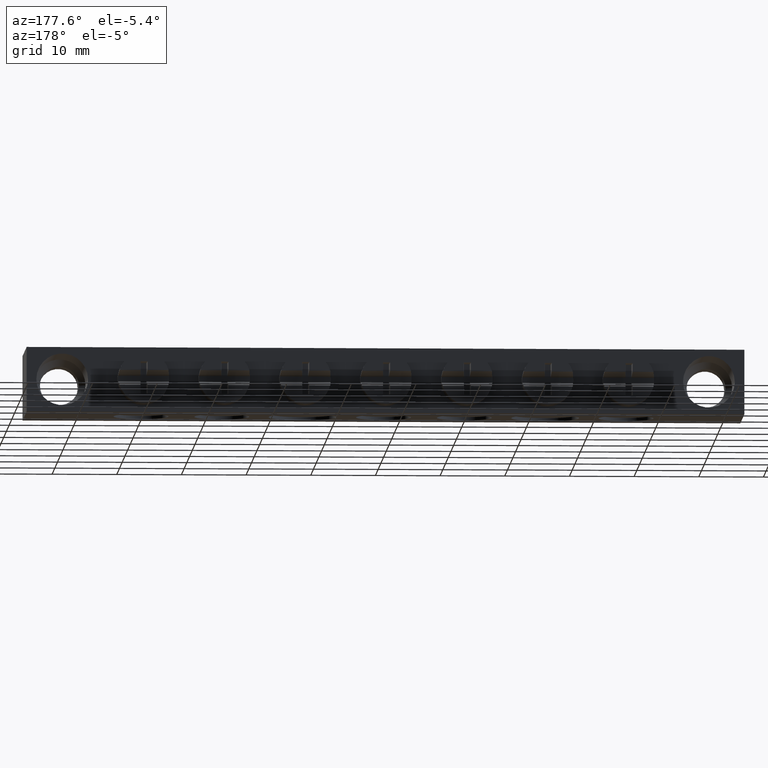
[diagram: clean part render]
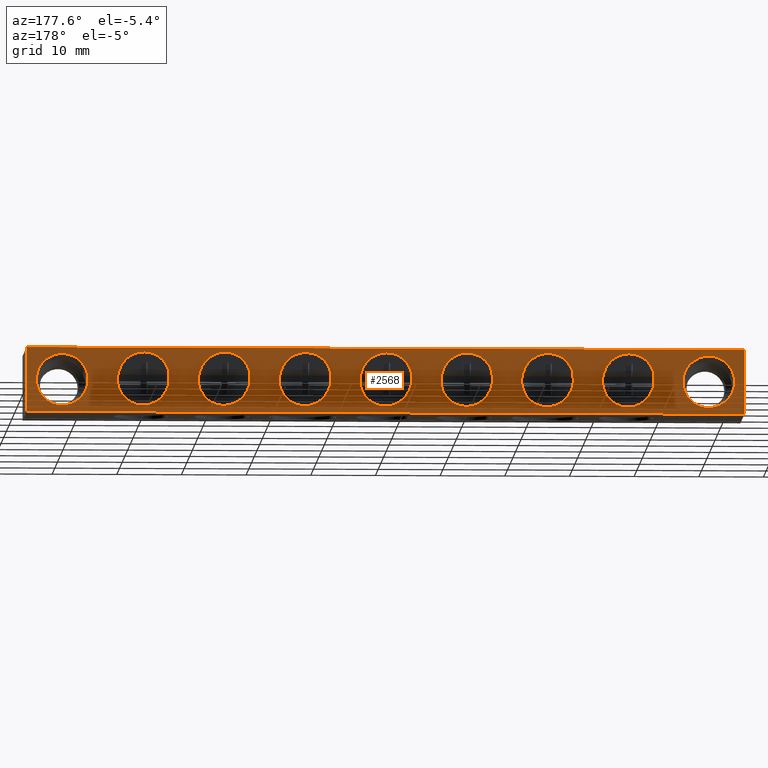
[diagram: same view with one face highlighted and labeled with its STEP entity id]
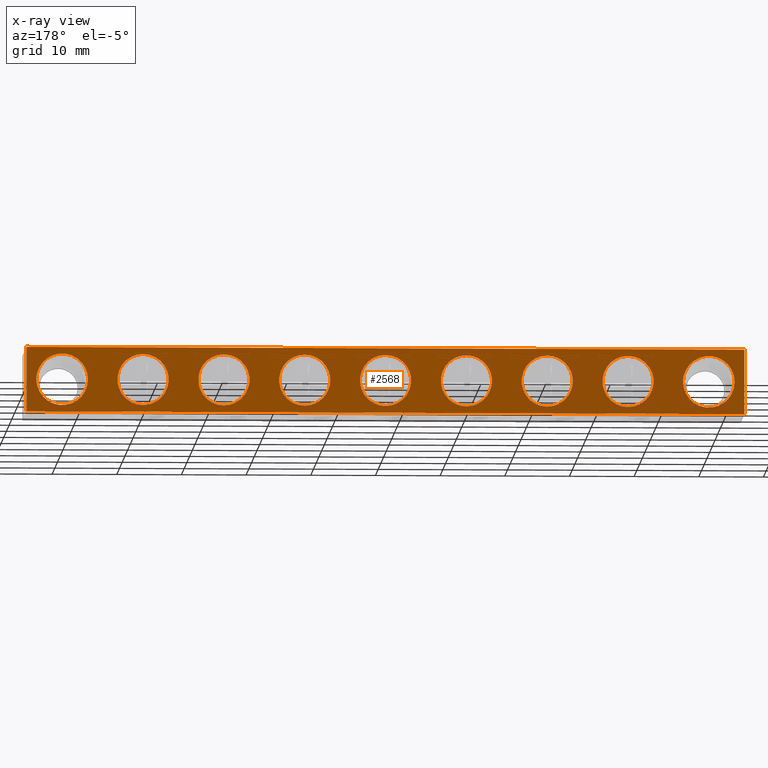
[diagram: x-ray of the same camera — body ghosted, the highlighted face saturated]
A machine part, auxiliary view. The second image highlights one B-rep face of the part: STEP entity #2568.
The next image is the same camera in x-ray: the body ghosted, the highlighted face saturated — about 0% of this face is hidden behind the body in this view.
In plain terms, the highlighted planar face has unit normal (0, -1, 0).
Its self-contained STEP definition (entity closure, byte-faithful):
#11 = EDGE_CURVE ( 'NONE', #3848, #3944, #870, .T. ) ;
#28 = EDGE_CURVE ( 'NONE', #3853, #3908, #873, .T. ) ;
#32 = EDGE_CURVE ( 'NONE', #445, #473, #885, .T. ) ;
#372 = EDGE_LOOP ( 'NONE', ( #523, #535 ) ) ;
#379 = EDGE_LOOP ( 'NONE', ( #537, #531 ) ) ;
#388 = EDGE_LOOP ( 'NONE', ( #560, #548 ) ) ;
#408 = EDGE_LOOP ( 'NONE', ( #553, #568 ) ) ;
#412 = EDGE_LOOP ( 'NONE', ( #532, #541 ) ) ;
#413 = EDGE_LOOP ( 'NONE', ( #576, #543 ) ) ;
#427 = EDGE_LOOP ( 'NONE', ( #601, #593 ) ) ;
#428 = EDGE_LOOP ( 'NONE', ( #596, #552 ) ) ;
#430 = EDGE_LOOP ( 'NONE', ( #599, #592, #479, #485 ) ) ;
#432 = VERTEX_POINT ( 'NONE', #3379 ) ;
#437 = EDGE_LOOP ( 'NONE', ( #515, #558 ) ) ;
#442 = VERTEX_POINT ( 'NONE', #3393 ) ;
#445 = VERTEX_POINT ( 'NONE', #3394 ) ;
#468 = VERTEX_POINT ( 'NONE', #3378 ) ;
#473 = VERTEX_POINT ( 'NONE', #3373 ) ;
#474 = VERTEX_POINT ( 'NONE', #3407 ) ;
#479 = ORIENTED_EDGE ( 'NONE', *, *, #2667, .F. ) ;
#485 = ORIENTED_EDGE ( 'NONE', *, *, #2669, .F. ) ;
#515 = ORIENTED_EDGE ( 'NONE', *, *, #4964, .F. ) ;
#523 = ORIENTED_EDGE ( 'NONE', *, *, #2787, .F. ) ;
#531 = ORIENTED_EDGE ( 'NONE', *, *, #2647, .F. ) ;
#532 = ORIENTED_EDGE ( 'NONE', *, *, #2549, .F. ) ;
#535 = ORIENTED_EDGE ( 'NONE', *, *, #2662, .F. ) ;
#537 = ORIENTED_EDGE ( 'NONE', *, *, #2970, .F. ) ;
#541 = ORIENTED_EDGE ( 'NONE', *, *, #2660, .F. ) ;
#543 = ORIENTED_EDGE ( 'NONE', *, *, #2643, .F. ) ;
#548 = ORIENTED_EDGE ( 'NONE', *, *, #2637, .F. ) ;
#552 = ORIENTED_EDGE ( 'NONE', *, *, #2642, .F. ) ;
#553 = ORIENTED_EDGE ( 'NONE', *, *, #11, .F. ) ;
#558 = ORIENTED_EDGE ( 'NONE', *, *, #2285, .F. ) ;
#560 = ORIENTED_EDGE ( 'NONE', *, *, #28, .F. ) ;
#568 = ORIENTED_EDGE ( 'NONE', *, *, #2671, .F. ) ;
#576 = ORIENTED_EDGE ( 'NONE', *, *, #2593, .F. ) ;
#592 = ORIENTED_EDGE ( 'NONE', *, *, #2644, .T. ) ;
#593 = ORIENTED_EDGE ( 'NONE', *, *, #2817, .F. ) ;
#596 = ORIENTED_EDGE ( 'NONE', *, *, #32, .F. ) ;
#599 = ORIENTED_EDGE ( 'NONE', *, *, #2664, .T. ) ;
#601 = ORIENTED_EDGE ( 'NONE', *, *, #2758, .F. ) ;
#670 = VERTEX_POINT ( 'NONE', #3422 ) ;
#692 = VERTEX_POINT ( 'NONE', #3530 ) ;
#856 = CIRCLE ( 'NONE', #879, 4.000000000000031100 ) ;
#866 = AXIS2_PLACEMENT_3D ( 'NONE', #3556, #3566, #3573 ) ;
#870 = CIRCLE ( 'NONE', #897, 3.960000000000000000 ) ;
#873 = CIRCLE ( 'NONE', #874, 3.960000000000000000 ) ;
#874 = AXIS2_PLACEMENT_3D ( 'NONE', #3357, #3355, #3360 ) ;
#877 = AXIS2_PLACEMENT_3D ( 'NONE', #3369, #3348, #3349 ) ;
#878 = CIRCLE ( 'NONE', #866, 3.960000000000000000 ) ;
#879 = AXIS2_PLACEMENT_3D ( 'NONE', #3579, #3543, #3581 ) ;
#885 = CIRCLE ( 'NONE', #877, 3.960000000000000000 ) ;
#897 = AXIS2_PLACEMENT_3D ( 'NONE', #3295, #3286, #3297 ) ;
#904 = AXIS2_PLACEMENT_3D ( 'NONE', #3699, #3782, #1722 ) ;
#929 = CIRCLE ( 'NONE', #904, 3.960000000000000000 ) ;
#951 = AXIS2_PLACEMENT_3D ( 'NONE', #3684, #3663, #3667 ) ;
#965 = CIRCLE ( 'NONE', #1010, 3.960000000000000000 ) ;
#967 = AXIS2_PLACEMENT_3D ( 'NONE', #1924, #1929, #1966 ) ;
#969 = CIRCLE ( 'NONE', #972, 3.960000000000000000 ) ;
#972 = AXIS2_PLACEMENT_3D ( 'NONE', #1903, #1926, #1917 ) ;
#990 = CIRCLE ( 'NONE', #967, 3.960000000000000000 ) ;
#991 = VECTOR ( 'NONE', #1951, 1000.000000000000000 ) ;
#992 = AXIS2_PLACEMENT_3D ( 'NONE', #1981, #1949, #1985 ) ;
#1010 = AXIS2_PLACEMENT_3D ( 'NONE', #1952, #1988, #1987 ) ;
#1017 = CIRCLE ( 'NONE', #992, 3.960000000000000000 ) ;
#1021 = AXIS2_PLACEMENT_3D ( 'NONE', #2079, #2078, #2071 ) ;
#1025 = VECTOR ( 'NONE', #1994, 1000.000000000000000 ) ;
#1031 = AXIS2_PLACEMENT_3D ( 'NONE', #2037, #2034, #2032 ) ;
#1032 = VECTOR ( 'NONE', #2048, 1000.000000000000000 ) ;
#1036 = CIRCLE ( 'NONE', #1048, 3.960000000000000000 ) ;
#1039 = CIRCLE ( 'NONE', #1031, 3.960000000000000000 ) ;
#1048 = AXIS2_PLACEMENT_3D ( 'NONE', #2009, #2014, #2019 ) ;
#1051 = VECTOR ( 'NONE', #2080, 1000.000000000000000 ) ;
#1056 = CIRCLE ( 'NONE', #1021, 3.960000000000000000 ) ;
#1171 = CIRCLE ( 'NONE', #1193, 3.960000000000000000 ) ;
#1190 = CIRCLE ( 'NONE', #1199, 4.000000000000034600 ) ;
#1193 = AXIS2_PLACEMENT_3D ( 'NONE', #2989, #2975, #2990 ) ;
#1199 = AXIS2_PLACEMENT_3D ( 'NONE', #1602, #1598, #1608 ) ;
#1211 = CIRCLE ( 'NONE', #1228, 4.000000000000034600 ) ;
#1228 = AXIS2_PLACEMENT_3D ( 'NONE', #3109, #3086, #3117 ) ;
#1279 = CIRCLE ( 'NONE', #1281, 3.960000000000000000 ) ;
#1281 = AXIS2_PLACEMENT_3D ( 'NONE', #2366, #2361, #2336 ) ;
#1389 = CIRCLE ( 'NONE', #1398, 4.000000000000031100 ) ;
#1398 = AXIS2_PLACEMENT_3D ( 'NONE', #4573, #4608, #4578 ) ;
#1598 = DIRECTION ( 'NONE',  ( -1.156482317317877900E-016, 1.000000000000000000, 0.0000000000000000000 ) ) ;
#1602 = CARTESIAN_POINT ( 'NONE',  ( 12.00000000000000000, 15.00000000000000400, -5.000000000000000000 ) ) ;
#1608 = DIRECTION ( 'NONE',  ( -1.000000000000000000, 0.0000000000000000000, 0.0000000000000000000 ) ) ;
#1722 = DIRECTION ( 'NONE',  ( 0.0000000000000000000, 0.0000000000000000000, 1.000000000000000000 ) ) ;
#1903 = CARTESIAN_POINT ( 'NONE',  ( 49.50000000000000000, 15.00000000000000000, -4.999999999999879200 ) ) ;
#1915 = LINE ( 'NONE', #1923, #991 ) ;
#1917 = DIRECTION ( 'NONE',  ( 0.0000000000000000000, 0.0000000000000000000, 1.000000000000000000 ) ) ;
#1923 = CARTESIAN_POINT ( 'NONE',  ( 117.5000000000000100, 15.00000000000000000, 0.0000000000000000000 ) ) ;
#1924 = CARTESIAN_POINT ( 'NONE',  ( 74.50000000000001400, 15.00000000000000000, -4.999999999999879200 ) ) ;
#1926 = DIRECTION ( 'NONE',  ( 0.0000000000000000000, 1.000000000000000000, 0.0000000000000000000 ) ) ;
#1929 = DIRECTION ( 'NONE',  ( 0.0000000000000000000, 1.000000000000000000, 0.0000000000000000000 ) ) ;
#1949 = DIRECTION ( 'NONE',  ( 0.0000000000000000000, 1.000000000000000000, 0.0000000000000000000 ) ) ;
#1951 = DIRECTION ( 'NONE',  ( -0.0000000000000000000, -0.0000000000000000000, -1.000000000000000000 ) ) ;
#1952 = CARTESIAN_POINT ( 'NONE',  ( 24.49999999999999300, 15.00000000000000000, -4.999999999999879200 ) ) ;
#1966 = DIRECTION ( 'NONE',  ( 0.0000000000000000000, 0.0000000000000000000, 1.000000000000000000 ) ) ;
#1981 = CARTESIAN_POINT ( 'NONE',  ( 87.00000000000002800, 15.00000000000000000, -4.999999999999879200 ) ) ;
#1985 = DIRECTION ( 'NONE',  ( 0.0000000000000000000, 0.0000000000000000000, 1.000000000000000000 ) ) ;
#1987 = DIRECTION ( 'NONE',  ( 0.0000000000000000000, 0.0000000000000000000, 1.000000000000000000 ) ) ;
#1988 = DIRECTION ( 'NONE',  ( 0.0000000000000000000, 1.000000000000000000, 0.0000000000000000000 ) ) ;
#1994 = DIRECTION ( 'NONE',  ( 1.000000000000000000, -0.0000000000000000000, 0.0000000000000000000 ) ) ;
#2009 = CARTESIAN_POINT ( 'NONE',  ( 62.00000000000000000, 15.00000000000000000, -4.999999999999879200 ) ) ;
#2014 = DIRECTION ( 'NONE',  ( 0.0000000000000000000, 1.000000000000000000, 0.0000000000000000000 ) ) ;
#2016 = LINE ( 'NONE', #2020, #1025 ) ;
#2019 = DIRECTION ( 'NONE',  ( 0.0000000000000000000, 0.0000000000000000000, 1.000000000000000000 ) ) ;
#2020 = CARTESIAN_POINT ( 'NONE',  ( 0.0000000000000000000, 15.00000000000000000, 0.0000000000000000000 ) ) ;
#2032 = DIRECTION ( 'NONE',  ( 0.0000000000000000000, 0.0000000000000000000, 1.000000000000000000 ) ) ;
#2034 = DIRECTION ( 'NONE',  ( 0.0000000000000000000, 1.000000000000000000, 0.0000000000000000000 ) ) ;
#2036 = LINE ( 'NONE', #2063, #1051 ) ;
#2037 = CARTESIAN_POINT ( 'NONE',  ( 99.50000000000000000, 15.00000000000000000, -4.999999999999879200 ) ) ;
#2045 = CARTESIAN_POINT ( 'NONE',  ( 0.0000000000000000000, 15.00000000000000000, -10.00000000000000000 ) ) ;
#2048 = DIRECTION ( 'NONE',  ( 1.000000000000000000, 0.0000000000000000000, 0.0000000000000000000 ) ) ;
#2051 = LINE ( 'NONE', #2045, #1032 ) ;
#2063 = CARTESIAN_POINT ( 'NONE',  ( 6.500000000000000900, 15.00000000000000000, -10.00000000000000000 ) ) ;
#2071 = DIRECTION ( 'NONE',  ( 0.0000000000000000000, 0.0000000000000000000, 1.000000000000000000 ) ) ;
#2078 = DIRECTION ( 'NONE',  ( 0.0000000000000000000, 1.000000000000000000, 0.0000000000000000000 ) ) ;
#2079 = CARTESIAN_POINT ( 'NONE',  ( 37.00000000000000700, 15.00000000000000000, -4.999999999999879200 ) ) ;
#2080 = DIRECTION ( 'NONE',  ( 0.0000000000000000000, -0.0000000000000000000, -1.000000000000000000 ) ) ;
#2285 = EDGE_CURVE ( 'NONE', #3265, #3278, #856, .T. ) ;
#2334 = CARTESIAN_POINT ( 'NONE',  ( 107.9999999999999700, 15.00000000000000400, -5.000000000000000000 ) ) ;
#2336 = DIRECTION ( 'NONE',  ( 0.0000000000000000000, 0.0000000000000000000, 1.000000000000000000 ) ) ;
#2348 = CARTESIAN_POINT ( 'NONE',  ( 16.00000000000003600, 15.00000000000000400, -4.999999999999999100 ) ) ;
#2357 = CARTESIAN_POINT ( 'NONE',  ( 7.999999999999965400, 15.00000000000000400, -5.000000000000000000 ) ) ;
#2361 = DIRECTION ( 'NONE',  ( 0.0000000000000000000, 1.000000000000000000, 0.0000000000000000000 ) ) ;
#2366 = CARTESIAN_POINT ( 'NONE',  ( 24.49999999999999300, 15.00000000000000000, -4.999999999999879200 ) ) ;
#2383 = CARTESIAN_POINT ( 'NONE',  ( 116.0000000000000300, 15.00000000000000400, -4.999999999999999100 ) ) ;
#2392 = CARTESIAN_POINT ( 'NONE',  ( 49.50000000000000000, 15.00000000000000000, -1.039999999999879500 ) ) ;
#2395 = CARTESIAN_POINT ( 'NONE',  ( 37.00000000000000700, 15.00000000000000000, -1.039999999999879500 ) ) ;
#2411 = CARTESIAN_POINT ( 'NONE',  ( 6.500000000000000900, 15.00000000000000000, 0.0000000000000000000 ) ) ;
#2418 = CARTESIAN_POINT ( 'NONE',  ( 6.500000000000000900, 15.00000000000000000, -10.00000000000000000 ) ) ;
#2423 = CARTESIAN_POINT ( 'NONE',  ( 117.5000000000000100, 15.00000000000000000, 0.0000000000000000000 ) ) ;
#2443 = CARTESIAN_POINT ( 'NONE',  ( 117.5000000000000100, 15.00000000000000000, -10.00000000000000000 ) ) ;
#2450 = CARTESIAN_POINT ( 'NONE',  ( 37.00000000000000700, 15.00000000000000000, -8.959999999999880100 ) ) ;
#2468 = CARTESIAN_POINT ( 'NONE',  ( 62.00000000000000000, 15.00000000000000000, -1.039999999999879500 ) ) ;
#2469 = CARTESIAN_POINT ( 'NONE',  ( 49.50000000000000000, 15.00000000000000000, -8.959999999999880100 ) ) ;
#2476 = CARTESIAN_POINT ( 'NONE',  ( 62.00000000000000000, 15.00000000000000000, -8.959999999999880100 ) ) ;
#2549 = EDGE_CURVE ( 'NONE', #442, #432, #878, .T. ) ;
#2568 = ADVANCED_FACE ( 'NONE', ( #3661, #3662, #3683, #3658, #3687, #3691, #3665, #3690, #3670, #3649 ), #3650, .F. ) ;
#2593 = EDGE_CURVE ( 'NONE', #468, #474, #929, .T. ) ;
#2637 = EDGE_CURVE ( 'NONE', #3908, #3853, #969, .T. ) ;
#2642 = EDGE_CURVE ( 'NONE', #473, #445, #990, .T. ) ;
#2643 = EDGE_CURVE ( 'NONE', #474, #468, #1017, .T. ) ;
#2644 = EDGE_CURVE ( 'NONE', #3884, #3873, #1915, .T. ) ;
#2647 = EDGE_CURVE ( 'NONE', #692, #670, #965, .T. ) ;
#2660 = EDGE_CURVE ( 'NONE', #432, #442, #1039, .T. ) ;
#2662 = EDGE_CURVE ( 'NONE', #3905, #3899, #1036, .T. ) ;
#2664 = EDGE_CURVE ( 'NONE', #3875, #3884, #2016, .T. ) ;
#2667 = EDGE_CURVE ( 'NONE', #3874, #3873, #2051, .T. ) ;
#2669 = EDGE_CURVE ( 'NONE', #3875, #3874, #2036, .T. ) ;
#2671 = EDGE_CURVE ( 'NONE', #3944, #3848, #1056, .T. ) ;
#2758 = EDGE_CURVE ( 'NONE', #3266, #3247, #1190, .T. ) ;
#2787 = EDGE_CURVE ( 'NONE', #3899, #3905, #1171, .T. ) ;
#2817 = EDGE_CURVE ( 'NONE', #3247, #3266, #1211, .T. ) ;
#2970 = EDGE_CURVE ( 'NONE', #670, #692, #1279, .T. ) ;
#2975 = DIRECTION ( 'NONE',  ( 0.0000000000000000000, 1.000000000000000000, 0.0000000000000000000 ) ) ;
#2989 = CARTESIAN_POINT ( 'NONE',  ( 62.00000000000000000, 15.00000000000000000, -4.999999999999879200 ) ) ;
#2990 = DIRECTION ( 'NONE',  ( 0.0000000000000000000, 0.0000000000000000000, 1.000000000000000000 ) ) ;
#3086 = DIRECTION ( 'NONE',  ( -1.156482317317877900E-016, 1.000000000000000000, 0.0000000000000000000 ) ) ;
#3109 = CARTESIAN_POINT ( 'NONE',  ( 12.00000000000000000, 15.00000000000000400, -5.000000000000000000 ) ) ;
#3117 = DIRECTION ( 'NONE',  ( -1.000000000000000000, 0.0000000000000000000, 0.0000000000000000000 ) ) ;
#3247 = VERTEX_POINT ( 'NONE', #2348 ) ;
#3265 = VERTEX_POINT ( 'NONE', #2383 ) ;
#3266 = VERTEX_POINT ( 'NONE', #2357 ) ;
#3278 = VERTEX_POINT ( 'NONE', #2334 ) ;
#3286 = DIRECTION ( 'NONE',  ( 0.0000000000000000000, 1.000000000000000000, 0.0000000000000000000 ) ) ;
#3295 = CARTESIAN_POINT ( 'NONE',  ( 37.00000000000000700, 15.00000000000000000, -4.999999999999879200 ) ) ;
#3297 = DIRECTION ( 'NONE',  ( 0.0000000000000000000, 0.0000000000000000000, 1.000000000000000000 ) ) ;
#3348 = DIRECTION ( 'NONE',  ( 0.0000000000000000000, 1.000000000000000000, 0.0000000000000000000 ) ) ;
#3349 = DIRECTION ( 'NONE',  ( 0.0000000000000000000, 0.0000000000000000000, 1.000000000000000000 ) ) ;
#3355 = DIRECTION ( 'NONE',  ( 0.0000000000000000000, 1.000000000000000000, 0.0000000000000000000 ) ) ;
#3357 = CARTESIAN_POINT ( 'NONE',  ( 49.50000000000000000, 15.00000000000000000, -4.999999999999879200 ) ) ;
#3360 = DIRECTION ( 'NONE',  ( 0.0000000000000000000, 0.0000000000000000000, 1.000000000000000000 ) ) ;
#3369 = CARTESIAN_POINT ( 'NONE',  ( 74.50000000000001400, 15.00000000000000000, -4.999999999999879200 ) ) ;
#3373 = CARTESIAN_POINT ( 'NONE',  ( 74.50000000000001400, 15.00000000000000000, -8.959999999999880100 ) ) ;
#3378 = CARTESIAN_POINT ( 'NONE',  ( 87.00000000000002800, 15.00000000000000000, -1.039999999999879500 ) ) ;
#3379 = CARTESIAN_POINT ( 'NONE',  ( 99.50000000000000000, 15.00000000000000000, -8.959999999999880100 ) ) ;
#3393 = CARTESIAN_POINT ( 'NONE',  ( 99.50000000000000000, 15.00000000000000000, -1.039999999999879500 ) ) ;
#3394 = CARTESIAN_POINT ( 'NONE',  ( 74.50000000000001400, 15.00000000000000000, -1.039999999999879500 ) ) ;
#3407 = CARTESIAN_POINT ( 'NONE',  ( 87.00000000000002800, 15.00000000000000000, -8.959999999999880100 ) ) ;
#3422 = CARTESIAN_POINT ( 'NONE',  ( 24.49999999999999300, 15.00000000000000000, -1.039999999999879500 ) ) ;
#3530 = CARTESIAN_POINT ( 'NONE',  ( 24.49999999999999300, 15.00000000000000000, -8.959999999999880100 ) ) ;
#3543 = DIRECTION ( 'NONE',  ( 1.156482317317877900E-016, 1.000000000000000000, 0.0000000000000000000 ) ) ;
#3556 = CARTESIAN_POINT ( 'NONE',  ( 99.50000000000000000, 15.00000000000000000, -4.999999999999879200 ) ) ;
#3566 = DIRECTION ( 'NONE',  ( 0.0000000000000000000, 1.000000000000000000, 0.0000000000000000000 ) ) ;
#3573 = DIRECTION ( 'NONE',  ( 0.0000000000000000000, 0.0000000000000000000, 1.000000000000000000 ) ) ;
#3579 = CARTESIAN_POINT ( 'NONE',  ( 112.0000000000000000, 15.00000000000000400, -5.000000000000000000 ) ) ;
#3581 = DIRECTION ( 'NONE',  ( -1.000000000000000000, 0.0000000000000000000, 0.0000000000000000000 ) ) ;
#3649 = FACE_BOUND ( 'NONE', #427, .T. ) ;
#3650 = PLANE ( 'NONE',  #951 ) ;
#3658 = FACE_BOUND ( 'NONE', #372, .T. ) ;
#3661 = FACE_BOUND ( 'NONE', #379, .T. ) ;
#3662 = FACE_BOUND ( 'NONE', #408, .T. ) ;
#3663 = DIRECTION ( 'NONE',  ( 0.0000000000000000000, -1.000000000000000000, 0.0000000000000000000 ) ) ;
#3665 = FACE_BOUND ( 'NONE', #412, .T. ) ;
#3667 = DIRECTION ( 'NONE',  ( 0.0000000000000000000, -0.0000000000000000000, -1.000000000000000000 ) ) ;
#3670 = FACE_OUTER_BOUND ( 'NONE', #430, .T. ) ;
#3683 = FACE_BOUND ( 'NONE', #388, .T. ) ;
#3684 = CARTESIAN_POINT ( 'NONE',  ( 0.0000000000000000000, 15.00000000000000000, -10.00000000000000000 ) ) ;
#3687 = FACE_BOUND ( 'NONE', #428, .T. ) ;
#3690 = FACE_BOUND ( 'NONE', #437, .T. ) ;
#3691 = FACE_BOUND ( 'NONE', #413, .T. ) ;
#3699 = CARTESIAN_POINT ( 'NONE',  ( 87.00000000000002800, 15.00000000000000000, -4.999999999999879200 ) ) ;
#3782 = DIRECTION ( 'NONE',  ( 0.0000000000000000000, 1.000000000000000000, 0.0000000000000000000 ) ) ;
#3848 = VERTEX_POINT ( 'NONE', #2395 ) ;
#3853 = VERTEX_POINT ( 'NONE', #2392 ) ;
#3873 = VERTEX_POINT ( 'NONE', #2443 ) ;
#3874 = VERTEX_POINT ( 'NONE', #2418 ) ;
#3875 = VERTEX_POINT ( 'NONE', #2411 ) ;
#3884 = VERTEX_POINT ( 'NONE', #2423 ) ;
#3899 = VERTEX_POINT ( 'NONE', #2468 ) ;
#3905 = VERTEX_POINT ( 'NONE', #2476 ) ;
#3908 = VERTEX_POINT ( 'NONE', #2469 ) ;
#3944 = VERTEX_POINT ( 'NONE', #2450 ) ;
#4573 = CARTESIAN_POINT ( 'NONE',  ( 112.0000000000000000, 15.00000000000000400, -5.000000000000000000 ) ) ;
#4578 = DIRECTION ( 'NONE',  ( -1.000000000000000000, 0.0000000000000000000, 0.0000000000000000000 ) ) ;
#4608 = DIRECTION ( 'NONE',  ( 1.156482317317877900E-016, 1.000000000000000000, 0.0000000000000000000 ) ) ;
#4964 = EDGE_CURVE ( 'NONE', #3278, #3265, #1389, .T. ) ;